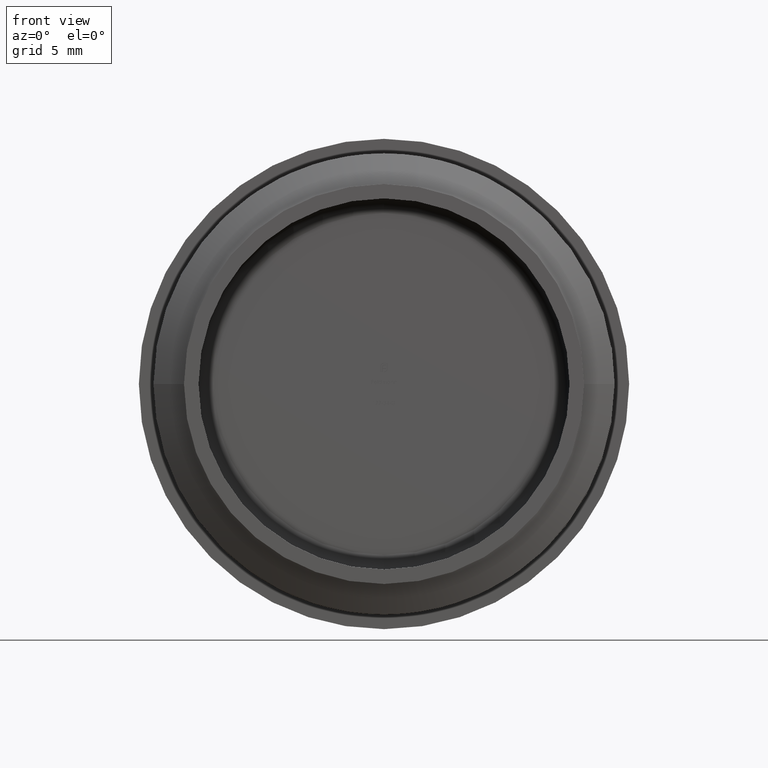
[diagram: clean part render]
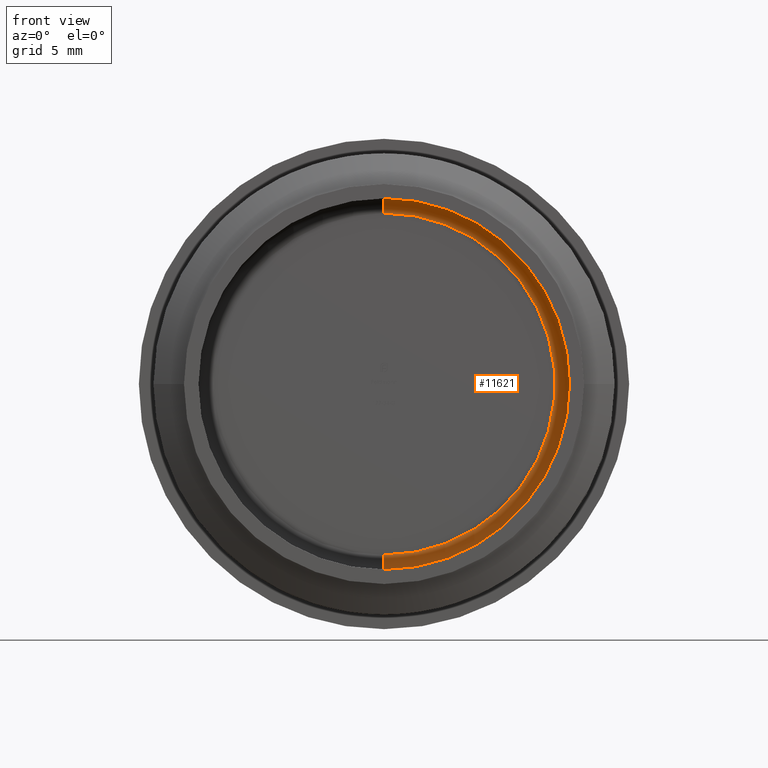
[diagram: same view with one face highlighted and labeled with its STEP entity id]
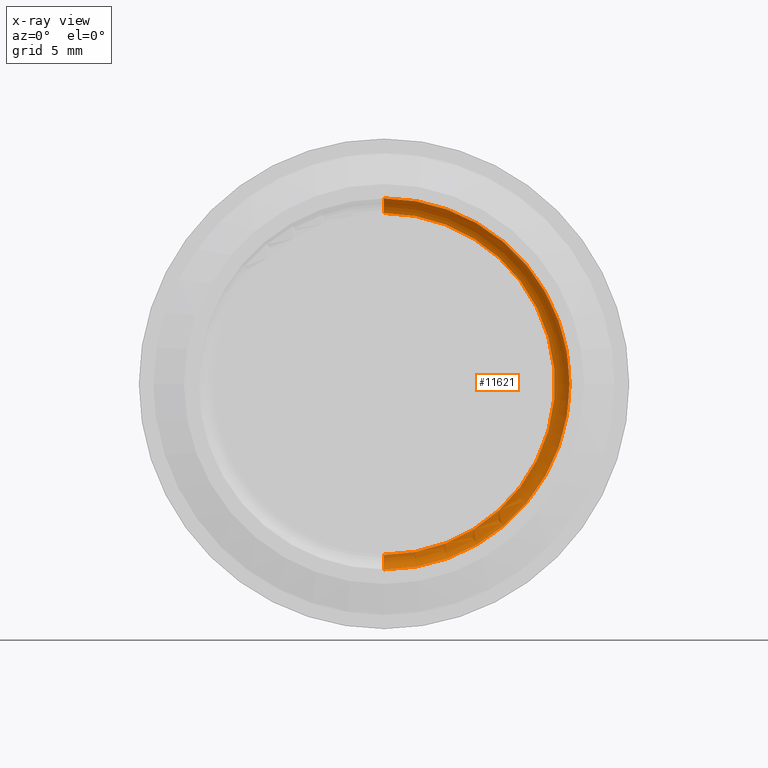
[diagram: x-ray of the same camera — body ghosted, the highlighted face saturated]
A machine part, front view. The second image highlights one B-rep face of the part: STEP entity #11621.
The next image is the same camera in x-ray: the body ghosted, the highlighted face saturated — about 0% of this face is hidden behind the body in this view.
In plain terms, the highlighted toroidal blend (fillet) surface has major radius 11.75 mm and minor (blend) radius 1 mm.
Its self-contained STEP definition (entity closure, byte-faithful):
#326 = EDGE_CURVE ( 'NONE', #5090, #10774, #10692, .T. ) ;
#651 = ORIENTED_EDGE ( 'NONE', *, *, #6513, .F. ) ;
#1006 = AXIS2_PLACEMENT_3D ( 'NONE', #2645, #9408, #10376 ) ;
#1053 = EDGE_LOOP ( 'NONE', ( #12134, #7056, #8438, #651 ) ) ;
#1442 = AXIS2_PLACEMENT_3D ( 'NONE', #3928, #4892, #8704 ) ;
#1503 = AXIS2_PLACEMENT_3D ( 'NONE', #4975, #5013, #7856 ) ;
#1586 = CARTESIAN_POINT ( 'NONE',  ( 0.000000000000000000, 11.00000000000000000, -11.75000000000000000 ) ) ;
#2645 = CARTESIAN_POINT ( 'NONE',  ( 0.000000000000000000, 9.999999999999998224, -11.75000000000000000 ) ) ;
#2654 = VERTEX_POINT ( 'NONE', #8931 ) ;
#3130 = EDGE_CURVE ( 'NONE', #11109, #2654, #11650, .T. ) ;
#3133 = DIRECTION ( 'NONE',  ( -1.224646799147351482E-16, 0.000000000000000000, -1.000000000000000000 ) ) ;
#3928 = CARTESIAN_POINT ( 'NONE',  ( 0.000000000000000000, 9.999999999999998224, 0.000000000000000000 ) ) ;
#4566 = CIRCLE ( 'NONE', #8929, 11.75000000000000000 ) ;
#4892 = DIRECTION ( 'NONE',  ( 0.000000000000000000, 1.000000000000000000, 0.000000000000000000 ) ) ;
#4975 = CARTESIAN_POINT ( 'NONE',  ( 0.000000000000000000, 9.999999999999998224, 0.000000000000000000 ) ) ;
#5013 = DIRECTION ( 'NONE',  ( -0.000000000000000000, -1.000000000000000000, -0.000000000000000000 ) ) ;
#5078 = DIRECTION ( 'NONE',  ( 1.000000000000000000, 0.000000000000000000, -1.224646799147353207E-16 ) ) ;
#5090 = VERTEX_POINT ( 'NONE', #1586 ) ;
#5372 = AXIS2_PLACEMENT_3D ( 'NONE', #10923, #5078, #3133 ) ;
#6448 = CARTESIAN_POINT ( 'NONE',  ( 1.500192328955507734E-15, 11.00000000000000000, 11.75000000000000000 ) ) ;
#6513 = EDGE_CURVE ( 'NONE', #2654, #10774, #11608, .T. ) ;
#7056 = ORIENTED_EDGE ( 'NONE', *, *, #8611, .F. ) ;
#7096 = CARTESIAN_POINT ( 'NONE',  ( 0.000000000000000000, 9.999999999999998224, -12.75000000000000000 ) ) ;
#7129 = DIRECTION ( 'NONE',  ( -0.000000000000000000, -1.000000000000000000, -0.000000000000000000 ) ) ;
#7457 = TOROIDAL_SURFACE ( 'NONE', #1503, 11.75000000000000000, 1.000000000000000000 ) ;
#7856 = DIRECTION ( 'NONE',  ( 0.000000000000000000, 0.000000000000000000, -1.000000000000000000 ) ) ;
#8349 = FACE_OUTER_BOUND ( 'NONE', #1053, .T. ) ;
#8438 = ORIENTED_EDGE ( 'NONE', *, *, #326, .T. ) ;
#8611 = EDGE_CURVE ( 'NONE', #5090, #11109, #4566, .T. ) ;
#8704 = DIRECTION ( 'NONE',  ( 0.000000000000000000, 0.000000000000000000, -1.000000000000000000 ) ) ;
#8929 = AXIS2_PLACEMENT_3D ( 'NONE', #11882, #7129, #11034 ) ;
#8931 = CARTESIAN_POINT ( 'NONE',  ( 1.561424668912875111E-15, 9.999999999999998224, 12.75000000000000000 ) ) ;
#9408 = DIRECTION ( 'NONE',  ( -1.000000000000000000, 0.000000000000000000, 0.000000000000000000 ) ) ;
#10376 = DIRECTION ( 'NONE',  ( 0.000000000000000000, 0.000000000000000000, 1.000000000000000000 ) ) ;
#10692 = CIRCLE ( 'NONE', #1006, 1.000000000000000888 ) ;
#10774 = VERTEX_POINT ( 'NONE', #7096 ) ;
#10923 = CARTESIAN_POINT ( 'NONE',  ( 1.438959988998140160E-15, 9.999999999999998224, 11.75000000000000000 ) ) ;
#11034 = DIRECTION ( 'NONE',  ( 0.000000000000000000, 0.000000000000000000, -1.000000000000000000 ) ) ;
#11109 = VERTEX_POINT ( 'NONE', #6448 ) ;
#11608 = CIRCLE ( 'NONE', #1442, 12.75000000000000000 ) ;
#11621 = ADVANCED_FACE ( 'NONE', ( #8349 ), #7457, .F. ) ;
#11650 = CIRCLE ( 'NONE', #5372, 1.000000000000000888 ) ;
#11882 = CARTESIAN_POINT ( 'NONE',  ( 0.000000000000000000, 11.00000000000000000, 0.000000000000000000 ) ) ;
#12134 = ORIENTED_EDGE ( 'NONE', *, *, #3130, .F. ) ;